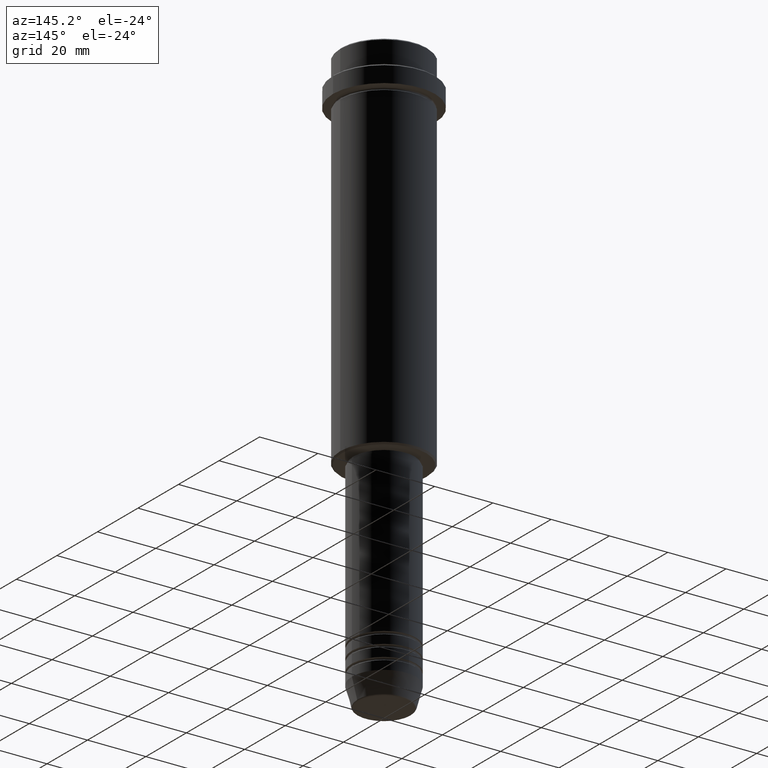
[diagram: clean part render]
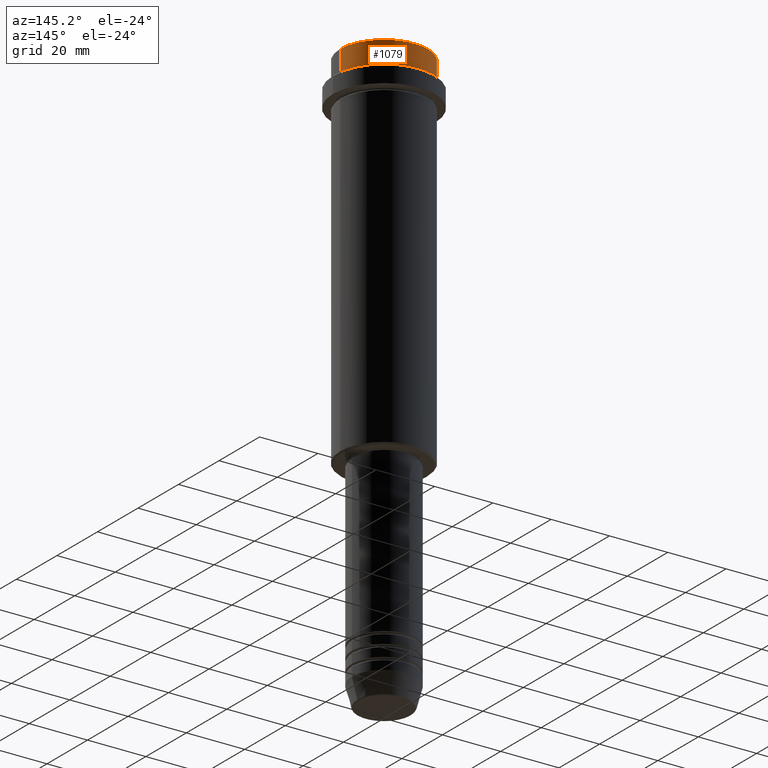
[diagram: same view with one face highlighted and labeled with its STEP entity id]
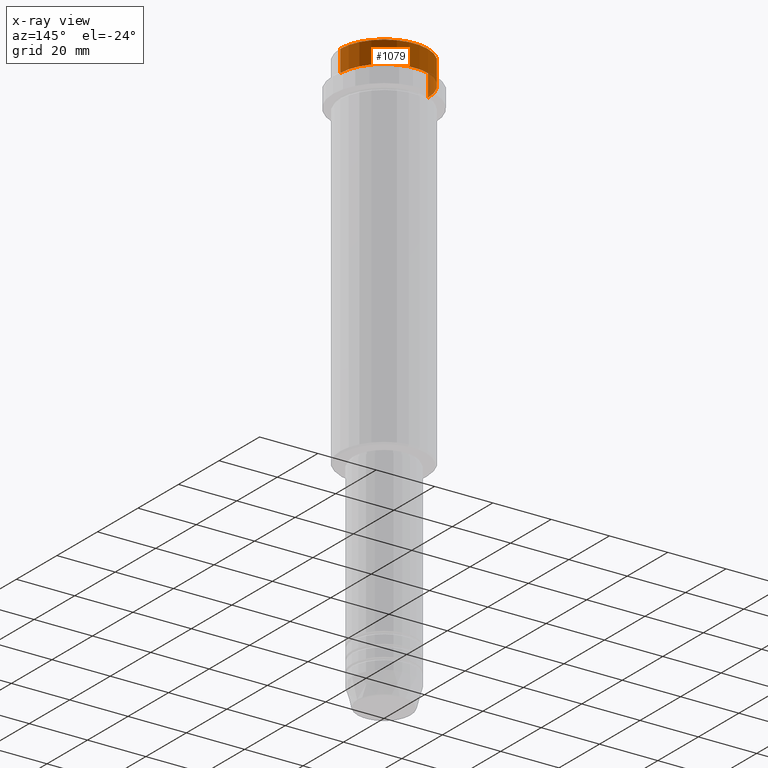
[diagram: x-ray of the same camera — body ghosted, the highlighted face saturated]
A machine part, auxiliary view. The second image highlights one B-rep face of the part: STEP entity #1079.
The next image is the same camera in x-ray: the body ghosted, the highlighted face saturated — about 2% of this face is hidden behind the body in this view.
In plain terms, the highlighted cylindrical surface (partial cylindrical patch) has radius 15 mm, axis along (-0, -0, 1).
Its self-contained STEP definition (entity closure, byte-faithful):
#2 = EDGE_CURVE ( 'NONE', #928, #1098, #846, .T. ) ;
#11 = EDGE_CURVE ( 'NONE', #989, #160, #1262, .T. ) ;
#39 = CARTESIAN_POINT ( 'NONE',  ( -15.00000000000000000, 1.836970198721029589E-15, -0.5000000000000108802 ) ) ;
#73 = EDGE_CURVE ( 'NONE', #989, #928, #87, .T. ) ;
#87 = CIRCLE ( 'NONE', #545, 15.00000000000000000 ) ;
#104 = CARTESIAN_POINT ( 'NONE',  ( 0.000000000000000000, 0.000000000000000000, -7.999999999999998224 ) ) ;
#160 = VERTEX_POINT ( 'NONE', #1387 ) ;
#191 = DIRECTION ( 'NONE',  ( 0.000000000000000000, 0.000000000000000000, -1.000000000000000000 ) ) ;
#282 = CIRCLE ( 'NONE', #1104, 15.00000000000000000 ) ;
#304 = AXIS2_PLACEMENT_3D ( 'NONE', #1119, #820, #458 ) ;
#315 = DIRECTION ( 'NONE',  ( -0.000000000000000000, -0.000000000000000000, 1.000000000000000000 ) ) ;
#336 = DIRECTION ( 'NONE',  ( 1.000000000000000000, 0.000000000000000000, 0.000000000000000000 ) ) ;
#403 = DIRECTION ( 'NONE',  ( -0.000000000000000000, -0.000000000000000000, 1.000000000000000000 ) ) ;
#450 = ORIENTED_EDGE ( 'NONE', *, *, #73, .T. ) ;
#458 = DIRECTION ( 'NONE',  ( 1.000000000000000000, 0.000000000000000000, 0.000000000000000000 ) ) ;
#512 = CARTESIAN_POINT ( 'NONE',  ( -15.00000000000000000, 1.836970198721029589E-15, 0.000000000000000000 ) ) ;
#545 = AXIS2_PLACEMENT_3D ( 'NONE', #104, #315, #1301 ) ;
#558 = CARTESIAN_POINT ( 'NONE',  ( 0.000000000000000000, 0.000000000000000000, -0.5000000000000108802 ) ) ;
#559 = ORIENTED_EDGE ( 'NONE', *, *, #2, .T. ) ;
#605 = DIRECTION ( 'NONE',  ( -0.000000000000000000, -0.000000000000000000, 1.000000000000000000 ) ) ;
#793 = EDGE_LOOP ( 'NONE', ( #450, #559, #1026, #1230 ) ) ;
#806 = CYLINDRICAL_SURFACE ( 'NONE', #304, 15.00000000000000000 ) ;
#820 = DIRECTION ( 'NONE',  ( -0.000000000000000000, -0.000000000000000000, 1.000000000000000000 ) ) ;
#846 = LINE ( 'NONE', #512, #987 ) ;
#928 = VERTEX_POINT ( 'NONE', #1137 ) ;
#974 = EDGE_CURVE ( 'NONE', #1098, #160, #282, .T. ) ;
#987 = VECTOR ( 'NONE', #403, 1000.000000000000000 ) ;
#989 = VERTEX_POINT ( 'NONE', #1309 ) ;
#1026 = ORIENTED_EDGE ( 'NONE', *, *, #974, .T. ) ;
#1079 = ADVANCED_FACE ( 'NONE', ( #1141 ), #806, .T. ) ;
#1098 = VERTEX_POINT ( 'NONE', #39 ) ;
#1104 = AXIS2_PLACEMENT_3D ( 'NONE', #558, #191, #336 ) ;
#1119 = CARTESIAN_POINT ( 'NONE',  ( 0.000000000000000000, 0.000000000000000000, 0.000000000000000000 ) ) ;
#1137 = CARTESIAN_POINT ( 'NONE',  ( -15.00000000000000000, 1.836970198721029589E-15, -7.999999999999998224 ) ) ;
#1141 = FACE_OUTER_BOUND ( 'NONE', #793, .T. ) ;
#1167 = VECTOR ( 'NONE', #605, 1000.000000000000000 ) ;
#1230 = ORIENTED_EDGE ( 'NONE', *, *, #11, .F. ) ;
#1262 = LINE ( 'NONE', #1353, #1167 ) ;
#1301 = DIRECTION ( 'NONE',  ( 1.000000000000000000, 0.000000000000000000, 0.000000000000000000 ) ) ;
#1309 = CARTESIAN_POINT ( 'NONE',  ( 15.00000000000000000, 0.000000000000000000, -7.999999999999998224 ) ) ;
#1353 = CARTESIAN_POINT ( 'NONE',  ( 15.00000000000000000, 0.000000000000000000, 0.000000000000000000 ) ) ;
#1387 = CARTESIAN_POINT ( 'NONE',  ( 15.00000000000000000, 0.000000000000000000, -0.5000000000000108802 ) ) ;